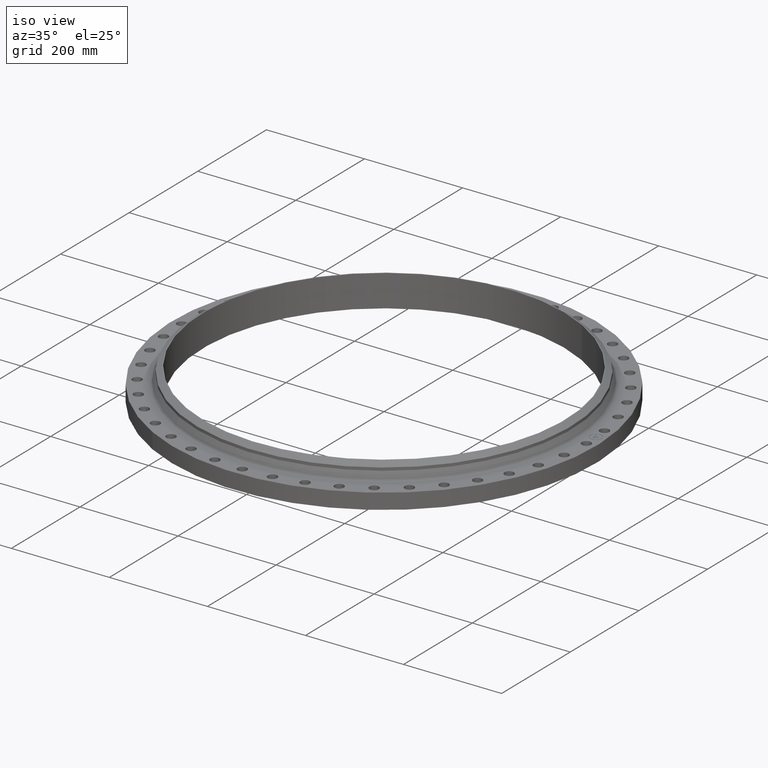
[diagram: clean part render]
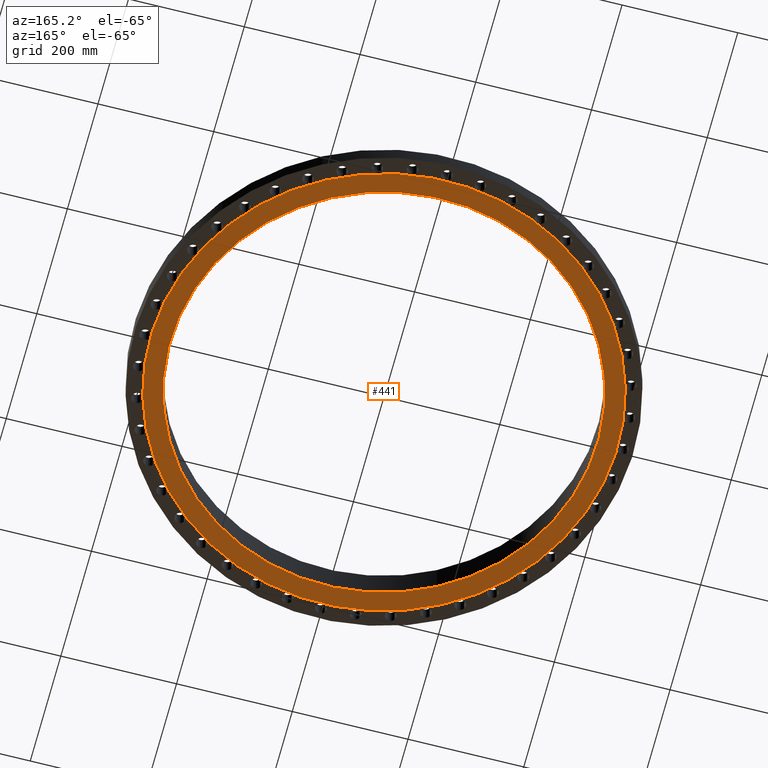
[diagram: tour spotlight — one face highlighted and labeled with its STEP entity id]
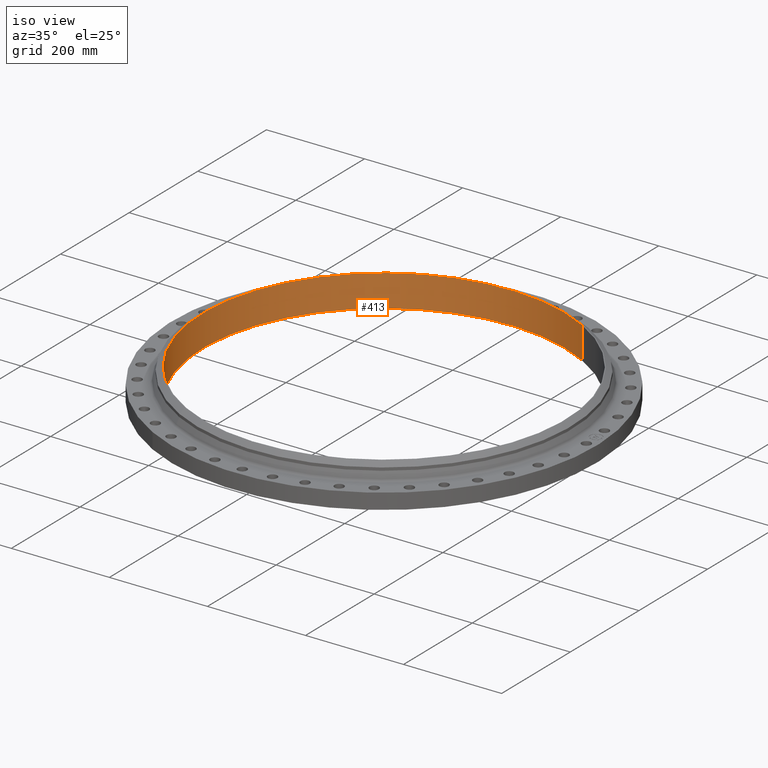
[diagram: tour spotlight — one face highlighted and labeled with its STEP entity id]
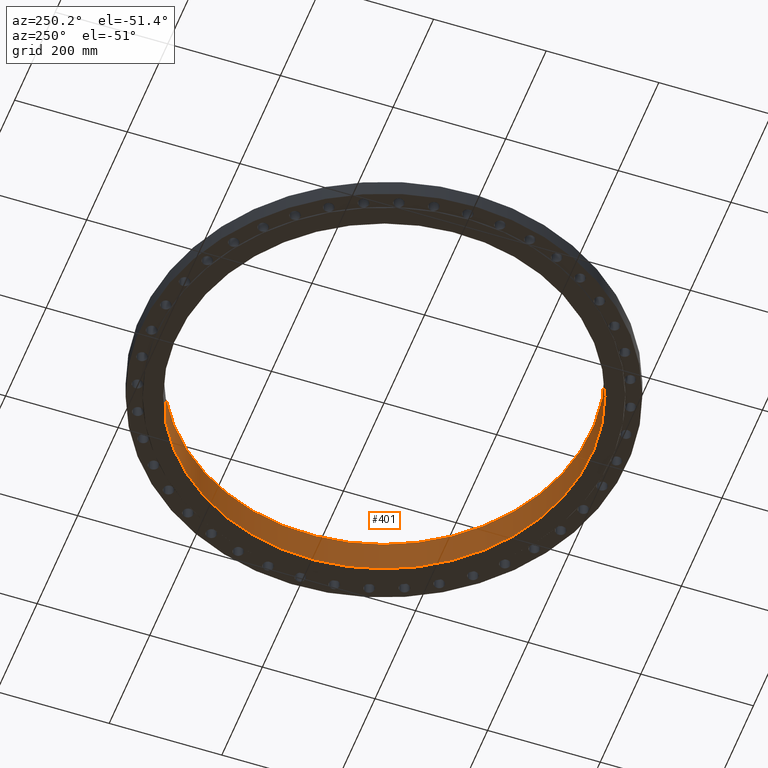
[diagram: tour spotlight — one face highlighted and labeled with its STEP entity id]
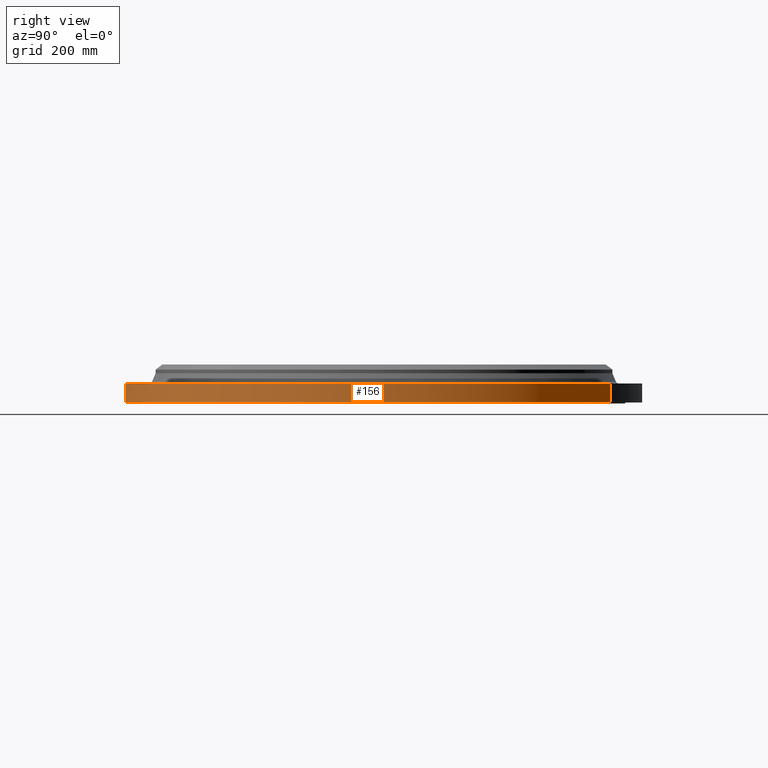
[diagram: tour spotlight — one face highlighted and labeled with its STEP entity id]
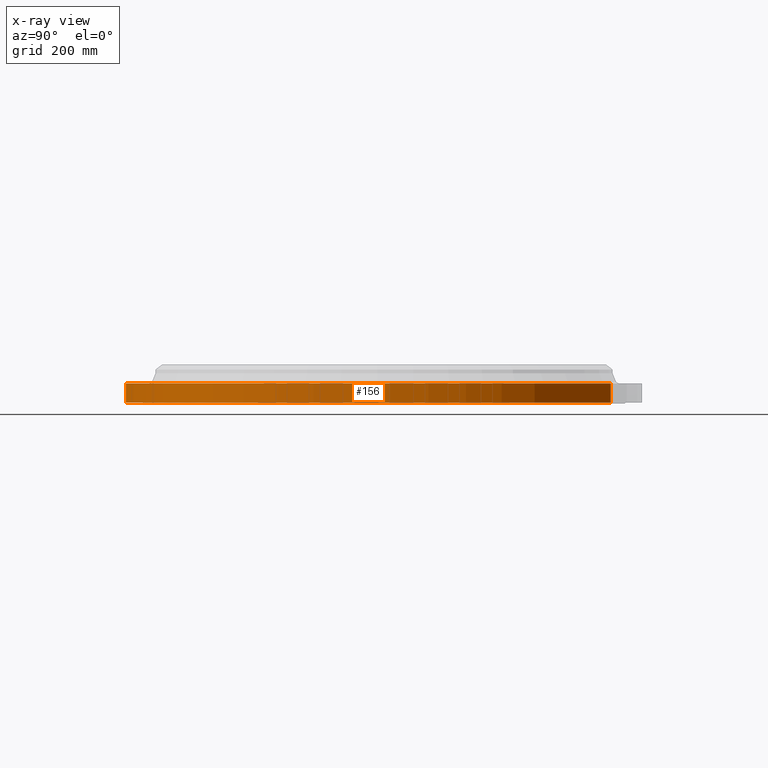
[diagram: x-ray of the same camera — body ghosted, this tour face saturated]
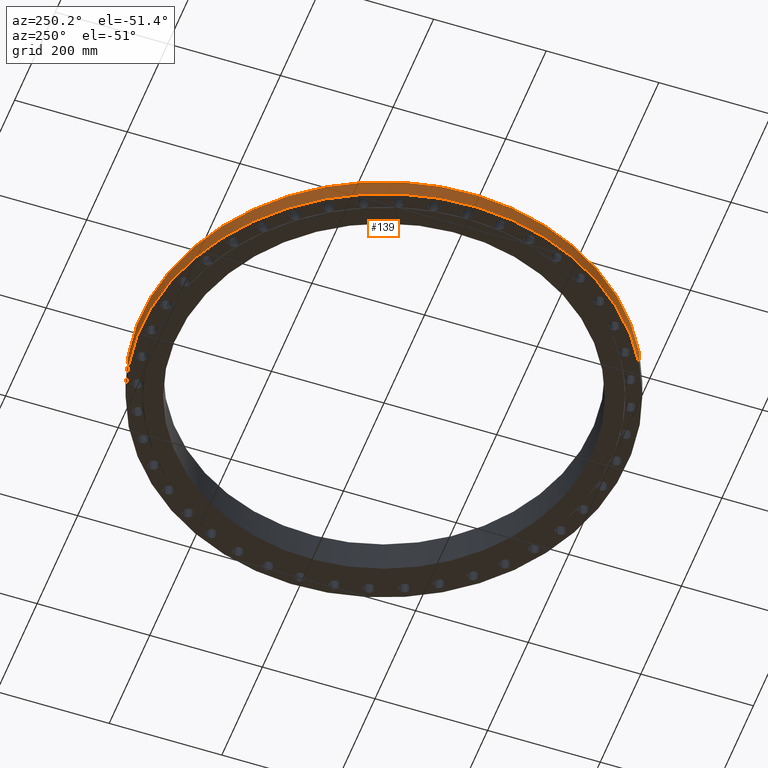
[diagram: tour spotlight — one face highlighted and labeled with its STEP entity id]
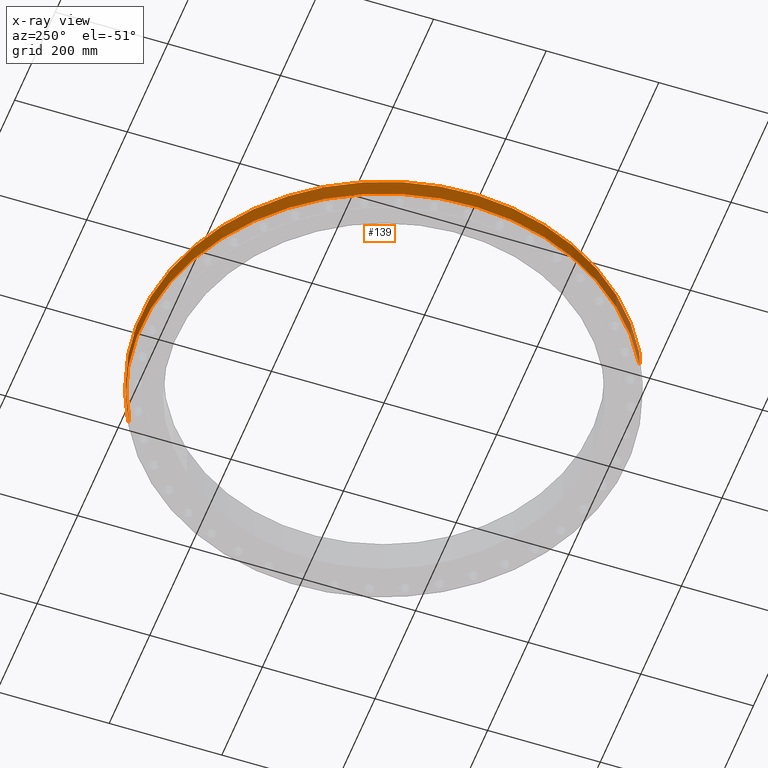
[diagram: x-ray of the same camera — body ghosted, this tour face saturated]
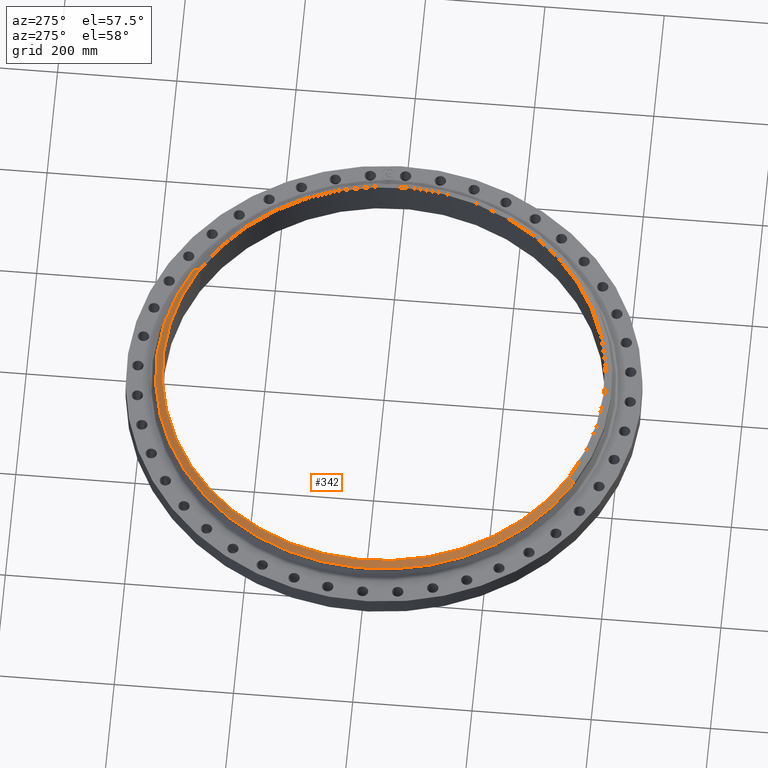
[diagram: tour spotlight — one face highlighted and labeled with its STEP entity id]
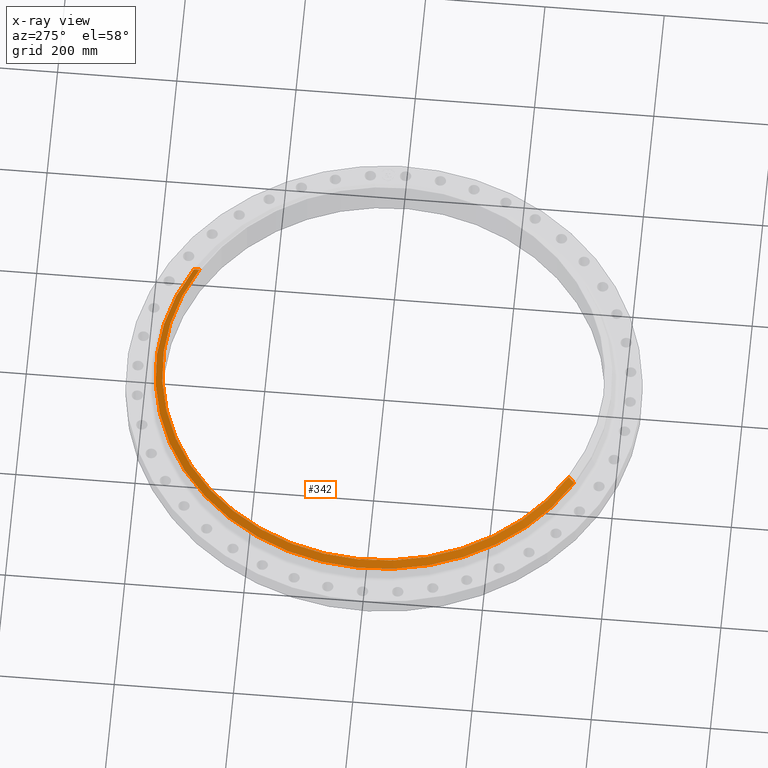
[diagram: x-ray of the same camera — body ghosted, this tour face saturated]
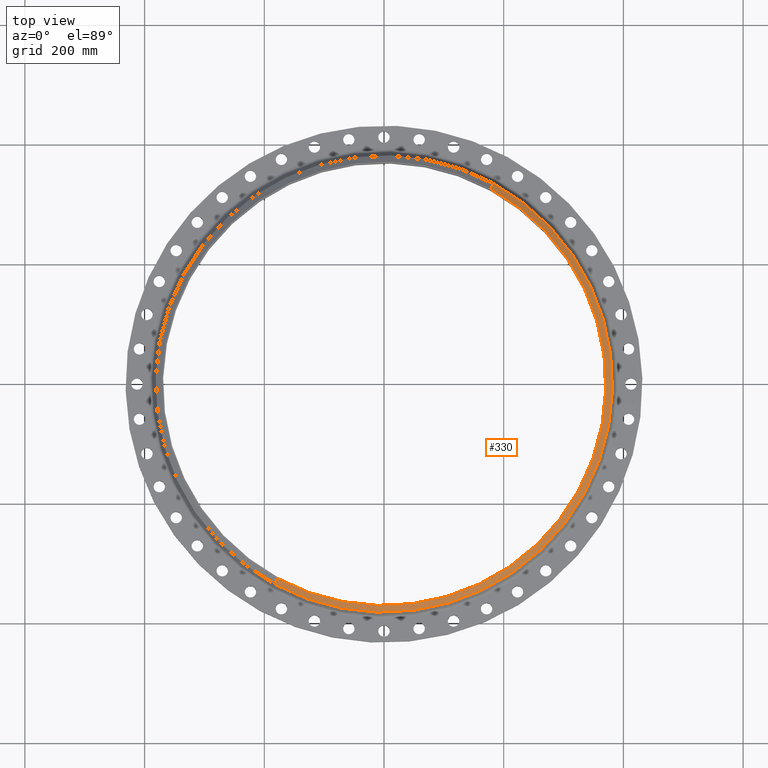
[diagram: tour spotlight — one face highlighted and labeled with its STEP entity id]
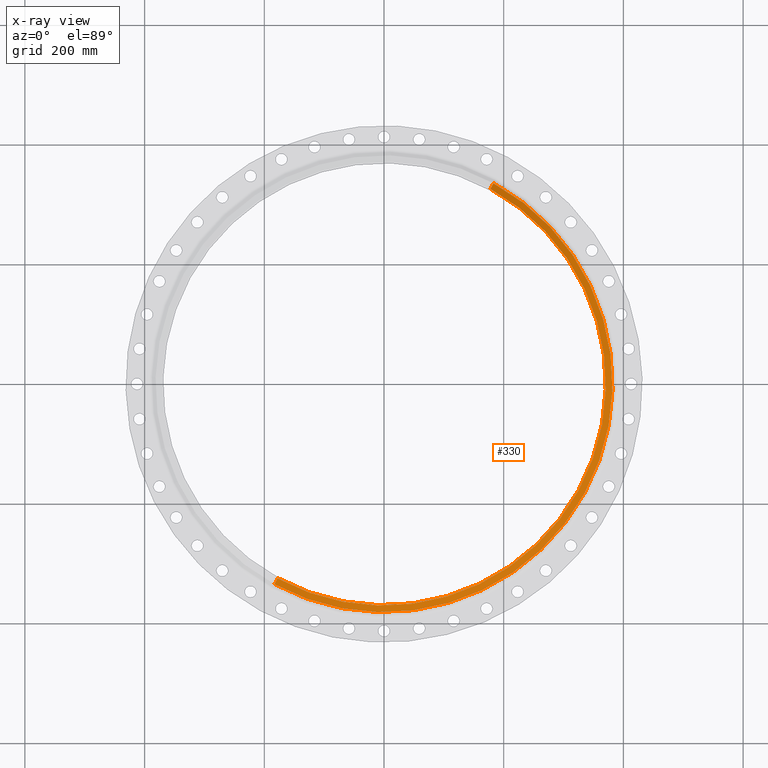
[diagram: x-ray of the same camera — body ghosted, this tour face saturated]
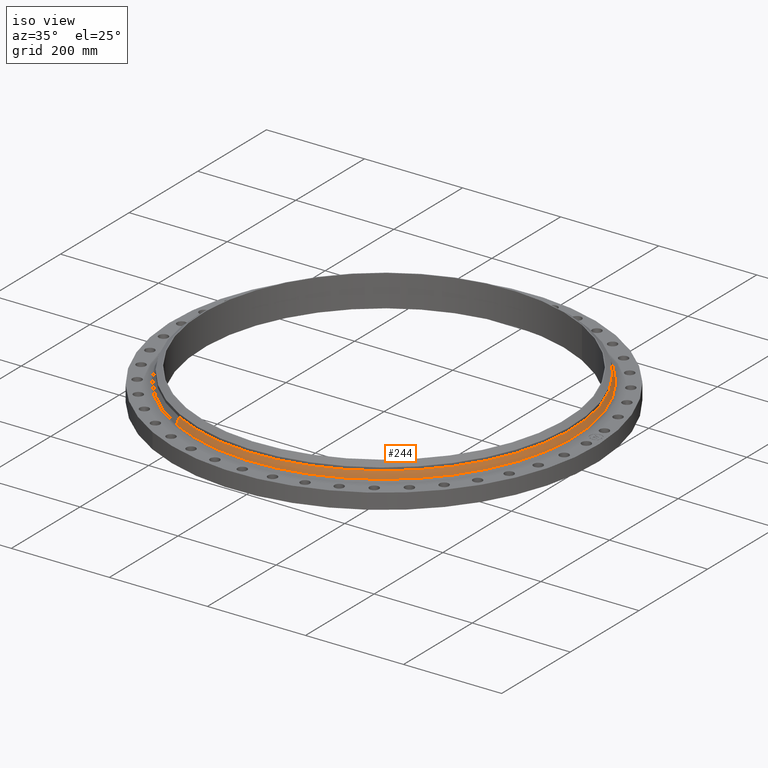
[diagram: tour spotlight — one face highlighted and labeled with its STEP entity id]
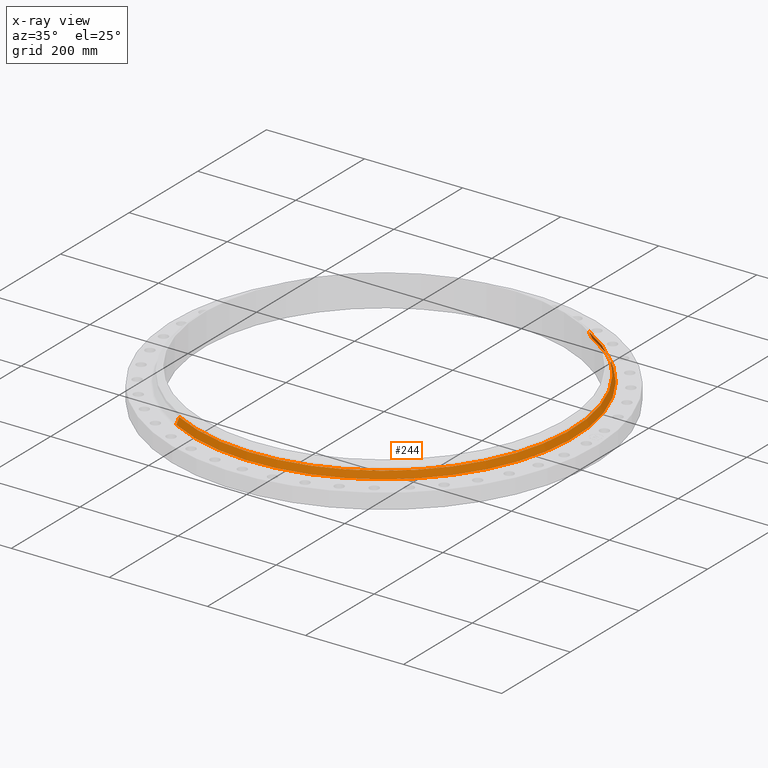
[diagram: x-ray of the same camera — body ghosted, this tour face saturated]
A machine part: a face-by-face anatomy tour. The part has 491 B-rep faces; the first image is the clean iso view, then the 8 largest visible faces are spotlighted one at a time (largest first), each with its STEP entity span.

Face 1 — auxiliary view, entity #441. In plain terms, the highlighted planar face has unit normal (0, 0, -1).
Definition (entity closure, byte-faithful):
#385=AXIS2_PLACEMENT_3D('Circle Axis2P3D',#383,#384,$) ;
#404=AXIS2_PLACEMENT_3D('Circle Axis2P3D',#402,#403,$) ;
#417=AXIS2_PLACEMENT_3D('Plane Axis2P3D',#414,#415,#416) ;
#421=AXIS2_PLACEMENT_3D('Circle Axis2P3D',#419,#420,$) ;
#430=AXIS2_PLACEMENT_3D('Circle Axis2P3D',#428,#429,$) ;
#380=CARTESIAN_POINT('Vertex',(6.96605307595,12.7512746243,-0.0630000000003)) ;
#383=CARTESIAN_POINT('Axis2P3D Location',(0.,0.,-0.0630000000003)) ;
#387=CARTESIAN_POINT('Vertex',(-6.96605307595,-12.7512746243,-0.0630000000003)) ;
#402=CARTESIAN_POINT('Axis2P3D Location',(0.,0.,-0.0630000000003)) ;
#414=CARTESIAN_POINT('Axis2P3D Location',(0.,14.5300000001,-0.0630000000003)) ;
#419=CARTESIAN_POINT('Axis2P3D Location',(0.,0.,-0.0630000000003)) ;
#423=CARTESIAN_POINT('Vertex',(-7.61088042537,-13.9316231701,-0.0630000000003)) ;
#425=CARTESIAN_POINT('Vertex',(7.61088042537,13.9316231701,-0.0630000000003)) ;
#428=CARTESIAN_POINT('Axis2P3D Location',(0.,0.,-0.0630000000003)) ;
#384=DIRECTION('Axis2P3D Direction',(0.,0.,-0.0393700787402)) ;
#403=DIRECTION('Axis2P3D Direction',(0.,0.,-0.0393700787402)) ;
#415=DIRECTION('Axis2P3D Direction',(0.,0.,-0.0393700787402)) ;
#416=DIRECTION('Axis2P3D XDirection',(0.0393700787402,0.,0.)) ;
#420=DIRECTION('Axis2P3D Direction',(0.,0.,-0.0393700787402)) ;
#429=DIRECTION('Axis2P3D Direction',(0.,0.,-0.0393700787402)) ;
#434=ORIENTED_EDGE('',*,*,#427,.T.) ;
#435=ORIENTED_EDGE('',*,*,#432,.T.) ;
#438=ORIENTED_EDGE('',*,*,#389,.F.) ;
#439=ORIENTED_EDGE('',*,*,#406,.F.) ;
#440=FACE_BOUND('',#437,.T.) ;
#441=ADVANCED_FACE('PartBody',(#436,#440),#418,.T.) ;
#386=CIRCLE('generated circle',#385,14.5300000001) ;
#405=CIRCLE('generated circle',#404,14.5300000001) ;
#422=CIRCLE('generated circle',#421,15.8750000001) ;
#431=CIRCLE('generated circle',#430,15.8750000001) ;
#389=EDGE_CURVE('',#381,#388,#386,.T.) ;
#406=EDGE_CURVE('',#388,#381,#405,.T.) ;
#427=EDGE_CURVE('',#424,#426,#422,.T.) ;
#432=EDGE_CURVE('',#426,#424,#431,.T.) ;
#433=EDGE_LOOP('',(#434,#435)) ;
#437=EDGE_LOOP('',(#438,#439)) ;
#436=FACE_OUTER_BOUND('',#433,.T.) ;
#418=PLANE('',#417) ;
#381=VERTEX_POINT('',#380) ;
#388=VERTEX_POINT('',#387) ;
#424=VERTEX_POINT('',#423) ;
#426=VERTEX_POINT('',#425) ;

Face 2 — iso view, entity #413. In plain terms, the highlighted cylindrical surface (partial cylindrical patch) has radius 369.062 mm, axis along (0, 0, -1).
Definition (entity closure, byte-faithful):
#354=AXIS2_PLACEMENT_3D('Circle Axis2P3D',#352,#353,$) ;
#374=AXIS2_PLACEMENT_3D('Cylinder Axis2P3D',#371,#372,#373) ;
#404=AXIS2_PLACEMENT_3D('Circle Axis2P3D',#402,#403,$) ;
#352=CARTESIAN_POINT('Axis2P3D Location',(4.47585975282E-015,5.59482469102E-016,2.50000000001)) ;
#356=CARTESIAN_POINT('Vertex',(-6.96605307595,-12.7512746243,2.50000000001)) ;
#358=CARTESIAN_POINT('Vertex',(6.96605307595,12.7512746243,2.50000000001)) ;
#371=CARTESIAN_POINT('Axis2P3D Location',(0.,0.,1.26850000001)) ;
#376=CARTESIAN_POINT('Line Origine',(6.96605307595,12.7512746243,1.2185)) ;
#380=CARTESIAN_POINT('Vertex',(6.96605307595,12.7512746243,-0.0630000000003)) ;
#387=CARTESIAN_POINT('Vertex',(-6.96605307595,-12.7512746243,-0.0630000000003)) ;
#390=CARTESIAN_POINT('Line Origine',(-6.96605307595,-12.7512746243,1.2185)) ;
#402=CARTESIAN_POINT('Axis2P3D Location',(0.,0.,-0.0630000000003)) ;
#353=DIRECTION('Axis2P3D Direction',(0.,-0.,-0.0393700787402)) ;
#372=DIRECTION('Axis2P3D Direction',(0.,0.,-0.0393700787402)) ;
#373=DIRECTION('Axis2P3D XDirection',(-0.0188750212049,-0.0345504945626,0.)) ;
#377=DIRECTION('Vector Direction',(0.,0.,-0.0393700787402)) ;
#391=DIRECTION('Vector Direction',(0.,0.,-0.0393700787402)) ;
#403=DIRECTION('Axis2P3D Direction',(0.,0.,-0.0393700787402)) ;
#378=VECTOR('Line Direction',#377,0.0393700787402) ;
#392=VECTOR('Line Direction',#391,0.0393700787402) ;
#408=ORIENTED_EDGE('',*,*,#394,.T.) ;
#409=ORIENTED_EDGE('',*,*,#406,.T.) ;
#410=ORIENTED_EDGE('',*,*,#382,.F.) ;
#411=ORIENTED_EDGE('',*,*,#360,.F.) ;
#413=ADVANCED_FACE('PartBody',(#412),#375,.F.) ;
#355=CIRCLE('generated circle',#354,14.5300000001) ;
#405=CIRCLE('generated circle',#404,14.5300000001) ;
#375=CYLINDRICAL_SURFACE('generated cylinder',#374,14.5300000001) ;
#360=EDGE_CURVE('',#357,#359,#355,.T.) ;
#382=EDGE_CURVE('',#359,#381,#379,.T.) ;
#394=EDGE_CURVE('',#357,#388,#393,.T.) ;
#406=EDGE_CURVE('',#388,#381,#405,.T.) ;
#407=EDGE_LOOP('',(#408,#409,#410,#411)) ;
#412=FACE_OUTER_BOUND('',#407,.T.) ;
#379=LINE('Line',#376,#378) ;
#393=LINE('Line',#390,#392) ;
#357=VERTEX_POINT('',#356) ;
#359=VERTEX_POINT('',#358) ;
#381=VERTEX_POINT('',#380) ;
#388=VERTEX_POINT('',#387) ;

Face 3 — auxiliary view, entity #401. In plain terms, the highlighted cylindrical surface (partial cylindrical patch) has radius 369.062 mm, axis along (0, 0, -1).
Definition (entity closure, byte-faithful):
#363=AXIS2_PLACEMENT_3D('Circle Axis2P3D',#361,#362,$) ;
#374=AXIS2_PLACEMENT_3D('Cylinder Axis2P3D',#371,#372,#373) ;
#385=AXIS2_PLACEMENT_3D('Circle Axis2P3D',#383,#384,$) ;
#356=CARTESIAN_POINT('Vertex',(-6.96605307595,-12.7512746243,2.50000000001)) ;
#358=CARTESIAN_POINT('Vertex',(6.96605307595,12.7512746243,2.50000000001)) ;
#361=CARTESIAN_POINT('Axis2P3D Location',(-3.35689481461E-015,-2.23792987641E-015,2.50000000001)) ;
#371=CARTESIAN_POINT('Axis2P3D Location',(0.,0.,1.26850000001)) ;
#376=CARTESIAN_POINT('Line Origine',(6.96605307595,12.7512746243,1.2185)) ;
#380=CARTESIAN_POINT('Vertex',(6.96605307595,12.7512746243,-0.0630000000003)) ;
#383=CARTESIAN_POINT('Axis2P3D Location',(0.,0.,-0.0630000000003)) ;
#387=CARTESIAN_POINT('Vertex',(-6.96605307595,-12.7512746243,-0.0630000000003)) ;
#390=CARTESIAN_POINT('Line Origine',(-6.96605307595,-12.7512746243,1.2185)) ;
#362=DIRECTION('Axis2P3D Direction',(0.,-0.,-0.0393700787402)) ;
#372=DIRECTION('Axis2P3D Direction',(0.,0.,-0.0393700787402)) ;
#373=DIRECTION('Axis2P3D XDirection',(-0.0188750212049,-0.0345504945626,0.)) ;
#377=DIRECTION('Vector Direction',(0.,0.,-0.0393700787402)) ;
#384=DIRECTION('Axis2P3D Direction',(0.,0.,-0.0393700787402)) ;
#391=DIRECTION('Vector Direction',(0.,0.,-0.0393700787402)) ;
#378=VECTOR('Line Direction',#377,0.0393700787402) ;
#392=VECTOR('Line Direction',#391,0.0393700787402) ;
#396=ORIENTED_EDGE('',*,*,#382,.T.) ;
#397=ORIENTED_EDGE('',*,*,#389,.T.) ;
#398=ORIENTED_EDGE('',*,*,#394,.F.) ;
#399=ORIENTED_EDGE('',*,*,#365,.F.) ;
#401=ADVANCED_FACE('PartBody',(#400),#375,.F.) ;
#364=CIRCLE('generated circle',#363,14.5300000001) ;
#386=CIRCLE('generated circle',#385,14.5300000001) ;
#375=CYLINDRICAL_SURFACE('generated cylinder',#374,14.5300000001) ;
#365=EDGE_CURVE('',#359,#357,#364,.T.) ;
#382=EDGE_CURVE('',#359,#381,#379,.T.) ;
#389=EDGE_CURVE('',#381,#388,#386,.T.) ;
#394=EDGE_CURVE('',#357,#388,#393,.T.) ;
#395=EDGE_LOOP('',(#396,#397,#398,#399)) ;
#400=FACE_OUTER_BOUND('',#395,.T.) ;
#379=LINE('Line',#376,#378) ;
#393=LINE('Line',#390,#392) ;
#357=VERTEX_POINT('',#356) ;
#359=VERTEX_POINT('',#358) ;
#381=VERTEX_POINT('',#380) ;
#388=VERTEX_POINT('',#387) ;

Face 4 — right view, entity #156. An x-ray twin of the same camera follows (body ghosted, this face saturated) — the face is partly hidden behind the body. In plain terms, the highlighted cylindrical surface (partial cylindrical patch) has radius 431.8 mm, axis along (0, 0, -1).
Definition (entity closure, byte-faithful):
#103=AXIS2_PLACEMENT_3D('Cylinder Axis2P3D',#100,#101,#102) ;
#142=AXIS2_PLACEMENT_3D('Circle Axis2P3D',#140,#141,$) ;
#147=AXIS2_PLACEMENT_3D('Circle Axis2P3D',#145,#146,$) ;
#100=CARTESIAN_POINT('Axis2P3D Location',(0.,0.,1.26850000001)) ;
#109=CARTESIAN_POINT('Vertex',(-8.1502341563,-14.9189035522,1.95818864186E-015)) ;
#111=CARTESIAN_POINT('Vertex',(8.1502341563,14.9189035522,1.95818864186E-015)) ;
#114=CARTESIAN_POINT('Line Origine',(-8.1502341563,-14.9189035522,0.625000000003)) ;
#118=CARTESIAN_POINT('Vertex',(-8.1502341563,-14.9189035522,1.25000000001)) ;
#125=CARTESIAN_POINT('Vertex',(8.1502341563,14.9189035522,1.25000000001)) ;
#128=CARTESIAN_POINT('Line Origine',(8.1502341563,14.9189035522,0.625000000003)) ;
#140=CARTESIAN_POINT('Axis2P3D Location',(0.,0.,1.95818864186E-015)) ;
#145=CARTESIAN_POINT('Axis2P3D Location',(0.,0.,1.25000000001)) ;
#101=DIRECTION('Axis2P3D Direction',(0.,0.,-0.0393700787402)) ;
#102=DIRECTION('Axis2P3D XDirection',(0.0188750212049,0.0345504945626,0.)) ;
#115=DIRECTION('Vector Direction',(0.,0.,-0.0393700787402)) ;
#129=DIRECTION('Vector Direction',(0.,0.,-0.0393700787402)) ;
#141=DIRECTION('Axis2P3D Direction',(0.,0.,-0.0393700787402)) ;
#146=DIRECTION('Axis2P3D Direction',(0.,0.,-0.0393700787402)) ;
#116=VECTOR('Line Direction',#115,0.0393700787402) ;
#130=VECTOR('Line Direction',#129,0.0393700787402) ;
#151=ORIENTED_EDGE('',*,*,#144,.F.) ;
#152=ORIENTED_EDGE('',*,*,#132,.T.) ;
#153=ORIENTED_EDGE('',*,*,#149,.T.) ;
#154=ORIENTED_EDGE('',*,*,#120,.F.) ;
#156=ADVANCED_FACE('PartBody',(#155),#104,.T.) ;
#143=CIRCLE('generated circle',#142,17.0000000001) ;
#148=CIRCLE('generated circle',#147,17.0000000001) ;
#104=CYLINDRICAL_SURFACE('generated cylinder',#103,17.0000000001) ;
#120=EDGE_CURVE('',#110,#119,#117,.F.) ;
#132=EDGE_CURVE('',#112,#126,#131,.F.) ;
#144=EDGE_CURVE('',#112,#110,#143,.T.) ;
#149=EDGE_CURVE('',#126,#119,#148,.T.) ;
#150=EDGE_LOOP('',(#151,#152,#153,#154)) ;
#155=FACE_OUTER_BOUND('',#150,.T.) ;
#117=LINE('Line',#114,#116) ;
#131=LINE('Line',#128,#130) ;
#110=VERTEX_POINT('',#109) ;
#112=VERTEX_POINT('',#111) ;
#119=VERTEX_POINT('',#118) ;
#126=VERTEX_POINT('',#125) ;

Face 5 — auxiliary view, entity #139. An x-ray twin of the same camera follows (body ghosted, this face saturated) — the face is partly hidden behind the body. In plain terms, the highlighted cylindrical surface (partial cylindrical patch) has radius 431.8 mm, axis along (0, 0, -1).
Definition (entity closure, byte-faithful):
#103=AXIS2_PLACEMENT_3D('Cylinder Axis2P3D',#100,#101,#102) ;
#107=AXIS2_PLACEMENT_3D('Circle Axis2P3D',#105,#106,$) ;
#123=AXIS2_PLACEMENT_3D('Circle Axis2P3D',#121,#122,$) ;
#100=CARTESIAN_POINT('Axis2P3D Location',(0.,0.,1.26850000001)) ;
#105=CARTESIAN_POINT('Axis2P3D Location',(0.,0.,1.95818864186E-015)) ;
#109=CARTESIAN_POINT('Vertex',(-8.1502341563,-14.9189035522,1.95818864186E-015)) ;
#111=CARTESIAN_POINT('Vertex',(8.1502341563,14.9189035522,1.95818864186E-015)) ;
#114=CARTESIAN_POINT('Line Origine',(-8.1502341563,-14.9189035522,0.625000000003)) ;
#118=CARTESIAN_POINT('Vertex',(-8.1502341563,-14.9189035522,1.25000000001)) ;
#121=CARTESIAN_POINT('Axis2P3D Location',(0.,0.,1.25000000001)) ;
#125=CARTESIAN_POINT('Vertex',(8.1502341563,14.9189035522,1.25000000001)) ;
#128=CARTESIAN_POINT('Line Origine',(8.1502341563,14.9189035522,0.625000000003)) ;
#101=DIRECTION('Axis2P3D Direction',(0.,0.,-0.0393700787402)) ;
#102=DIRECTION('Axis2P3D XDirection',(0.0188750212049,0.0345504945626,0.)) ;
#106=DIRECTION('Axis2P3D Direction',(0.,0.,-0.0393700787402)) ;
#115=DIRECTION('Vector Direction',(0.,0.,-0.0393700787402)) ;
#122=DIRECTION('Axis2P3D Direction',(0.,0.,-0.0393700787402)) ;
#129=DIRECTION('Vector Direction',(0.,0.,-0.0393700787402)) ;
#116=VECTOR('Line Direction',#115,0.0393700787402) ;
#130=VECTOR('Line Direction',#129,0.0393700787402) ;
#134=ORIENTED_EDGE('',*,*,#113,.F.) ;
#135=ORIENTED_EDGE('',*,*,#120,.T.) ;
#136=ORIENTED_EDGE('',*,*,#127,.T.) ;
#137=ORIENTED_EDGE('',*,*,#132,.F.) ;
#139=ADVANCED_FACE('PartBody',(#138),#104,.T.) ;
#108=CIRCLE('generated circle',#107,17.0000000001) ;
#124=CIRCLE('generated circle',#123,17.0000000001) ;
#104=CYLINDRICAL_SURFACE('generated cylinder',#103,17.0000000001) ;
#113=EDGE_CURVE('',#110,#112,#108,.T.) ;
#120=EDGE_CURVE('',#110,#119,#117,.F.) ;
#127=EDGE_CURVE('',#119,#126,#124,.T.) ;
#132=EDGE_CURVE('',#112,#126,#131,.F.) ;
#133=EDGE_LOOP('',(#134,#135,#136,#137)) ;
#138=FACE_OUTER_BOUND('',#133,.T.) ;
#117=LINE('Line',#114,#116) ;
#131=LINE('Line',#128,#130) ;
#110=VERTEX_POINT('',#109) ;
#112=VERTEX_POINT('',#111) ;
#119=VERTEX_POINT('',#118) ;
#126=VERTEX_POINT('',#125) ;

Face 6 — auxiliary view, entity #342. An x-ray twin of the same camera follows (body ghosted, this face saturated) — the face is partly hidden behind the body. In plain terms, the highlighted conical surface has half-angle 52.5 deg.
Definition (entity closure, byte-faithful):
#290=AXIS2_PLACEMENT_3D('Circle Axis2P3D',#288,#289,$) ;
#303=AXIS2_PLACEMENT_3D('Cone Axis2P3D',#300,#301,#302) ;
#333=AXIS2_PLACEMENT_3D('Circle Axis2P3D',#331,#332,$) ;
#266=CARTESIAN_POINT('Vertex',(-7.20576584525,-13.1900659053,2.16429444277)) ;
#273=CARTESIAN_POINT('Vertex',(7.20576584525,13.1900659053,2.16429444277)) ;
#288=CARTESIAN_POINT('Axis2P3D Location',(0.,0.,2.16429444277)) ;
#300=CARTESIAN_POINT('Axis2P3D Location',(0.,0.,2.50000000001)) ;
#305=CARTESIAN_POINT('Line Origine',(7.10089150868,12.9980947199,2.33214722139)) ;
#309=CARTESIAN_POINT('Vertex',(6.99601717211,12.8061235344,2.50000000001)) ;
#316=CARTESIAN_POINT('Vertex',(-6.99601717211,-12.8061235344,2.50000000001)) ;
#319=CARTESIAN_POINT('Line Origine',(-7.10089150868,-12.9980947199,2.33214722139)) ;
#331=CARTESIAN_POINT('Axis2P3D Location',(0.,0.,2.50000000001)) ;
#289=DIRECTION('Axis2P3D Direction',(0.,0.,-0.0393700787402)) ;
#301=DIRECTION('Axis2P3D Direction',(-0.,-0.,-0.0393700787402)) ;
#302=DIRECTION('Axis2P3D XDirection',(-0.0188750212049,-0.0345504945626,0.)) ;
#306=DIRECTION('Vector Direction',(0.014974561121,0.02741075027,-0.023966985394)) ;
#320=DIRECTION('Vector Direction',(-0.014974561121,-0.02741075027,-0.023966985394)) ;
#332=DIRECTION('Axis2P3D Direction',(0.,-0.,-0.0393700787402)) ;
#307=VECTOR('Line Direction',#306,0.0393700787402) ;
#321=VECTOR('Line Direction',#320,0.0393700787402) ;
#337=ORIENTED_EDGE('',*,*,#323,.F.) ;
#338=ORIENTED_EDGE('',*,*,#335,.T.) ;
#339=ORIENTED_EDGE('',*,*,#311,.T.) ;
#340=ORIENTED_EDGE('',*,*,#292,.F.) ;
#342=ADVANCED_FACE('PartBody',(#341),#304,.T.) ;
#291=CIRCLE('generated circle',#290,15.0300000001) ;
#334=CIRCLE('generated circle',#333,14.5925000001) ;
#304=CONICAL_SURFACE('Cone',#303,14.5925000001,0.916297857297) ;
#292=EDGE_CURVE('',#267,#274,#291,.T.) ;
#311=EDGE_CURVE('',#310,#274,#308,.T.) ;
#323=EDGE_CURVE('',#317,#267,#322,.T.) ;
#335=EDGE_CURVE('',#317,#310,#334,.T.) ;
#336=EDGE_LOOP('',(#337,#338,#339,#340)) ;
#341=FACE_OUTER_BOUND('',#336,.T.) ;
#308=LINE('Line',#305,#307) ;
#322=LINE('Line',#319,#321) ;
#267=VERTEX_POINT('',#266) ;
#274=VERTEX_POINT('',#273) ;
#310=VERTEX_POINT('',#309) ;
#317=VERTEX_POINT('',#316) ;

Face 7 — top view, entity #330. An x-ray twin of the same camera follows (body ghosted, this face saturated) — the face is partly hidden behind the body. In plain terms, the highlighted conical surface has half-angle 52.5 deg.
Definition (entity closure, byte-faithful):
#278=AXIS2_PLACEMENT_3D('Circle Axis2P3D',#276,#277,$) ;
#303=AXIS2_PLACEMENT_3D('Cone Axis2P3D',#300,#301,#302) ;
#314=AXIS2_PLACEMENT_3D('Circle Axis2P3D',#312,#313,$) ;
#266=CARTESIAN_POINT('Vertex',(-7.20576584525,-13.1900659053,2.16429444277)) ;
#273=CARTESIAN_POINT('Vertex',(7.20576584525,13.1900659053,2.16429444277)) ;
#276=CARTESIAN_POINT('Axis2P3D Location',(0.,0.,2.16429444277)) ;
#300=CARTESIAN_POINT('Axis2P3D Location',(0.,0.,2.50000000001)) ;
#305=CARTESIAN_POINT('Line Origine',(7.10089150868,12.9980947199,2.33214722139)) ;
#309=CARTESIAN_POINT('Vertex',(6.99601717211,12.8061235344,2.50000000001)) ;
#312=CARTESIAN_POINT('Axis2P3D Location',(0.,0.,2.50000000001)) ;
#316=CARTESIAN_POINT('Vertex',(-6.99601717211,-12.8061235344,2.50000000001)) ;
#319=CARTESIAN_POINT('Line Origine',(-7.10089150868,-12.9980947199,2.33214722139)) ;
#277=DIRECTION('Axis2P3D Direction',(0.,0.,-0.0393700787402)) ;
#301=DIRECTION('Axis2P3D Direction',(-0.,-0.,-0.0393700787402)) ;
#302=DIRECTION('Axis2P3D XDirection',(-0.0188750212049,-0.0345504945626,0.)) ;
#306=DIRECTION('Vector Direction',(0.014974561121,0.02741075027,-0.023966985394)) ;
#313=DIRECTION('Axis2P3D Direction',(0.,-0.,-0.0393700787402)) ;
#320=DIRECTION('Vector Direction',(-0.014974561121,-0.02741075027,-0.023966985394)) ;
#307=VECTOR('Line Direction',#306,0.0393700787402) ;
#321=VECTOR('Line Direction',#320,0.0393700787402) ;
#325=ORIENTED_EDGE('',*,*,#311,.F.) ;
#326=ORIENTED_EDGE('',*,*,#318,.T.) ;
#327=ORIENTED_EDGE('',*,*,#323,.T.) ;
#328=ORIENTED_EDGE('',*,*,#280,.F.) ;
#330=ADVANCED_FACE('PartBody',(#329),#304,.T.) ;
#279=CIRCLE('generated circle',#278,15.0300000001) ;
#315=CIRCLE('generated circle',#314,14.5925000001) ;
#304=CONICAL_SURFACE('Cone',#303,14.5925000001,0.916297857297) ;
#280=EDGE_CURVE('',#274,#267,#279,.T.) ;
#311=EDGE_CURVE('',#310,#274,#308,.T.) ;
#318=EDGE_CURVE('',#310,#317,#315,.T.) ;
#323=EDGE_CURVE('',#317,#267,#322,.T.) ;
#324=EDGE_LOOP('',(#325,#326,#327,#328)) ;
#329=FACE_OUTER_BOUND('',#324,.T.) ;
#308=LINE('Line',#305,#307) ;
#322=LINE('Line',#319,#321) ;
#267=VERTEX_POINT('',#266) ;
#274=VERTEX_POINT('',#273) ;
#310=VERTEX_POINT('',#309) ;
#317=VERTEX_POINT('',#316) ;

Face 8 — iso view, entity #244. An x-ray twin of the same camera follows (body ghosted, this face saturated) — the face is partly hidden behind the body. In plain terms, the highlighted conical surface has half-angle 22.437 deg.
Definition (entity closure, byte-faithful):
#180=AXIS2_PLACEMENT_3D('Circle Axis2P3D',#178,#179,$) ;
#217=AXIS2_PLACEMENT_3D('Cone Axis2P3D',#214,#215,#216) ;
#228=AXIS2_PLACEMENT_3D('Circle Axis2P3D',#226,#227,$) ;
#175=CARTESIAN_POINT('Vertex',(7.30940230078,13.3797711646,1.40458151339)) ;
#178=CARTESIAN_POINT('Axis2P3D Location',(0.,0.,1.40458151339)) ;
#182=CARTESIAN_POINT('Vertex',(-7.30940230078,-13.3797711646,1.40458151339)) ;
#214=CARTESIAN_POINT('Axis2P3D Location',(0.,0.,1.92807397033)) ;
#219=CARTESIAN_POINT('Line Origine',(7.25758407302,13.284918535,1.66632774186)) ;
#223=CARTESIAN_POINT('Vertex',(7.20576584525,13.1900659053,1.92807397033)) ;
#226=CARTESIAN_POINT('Axis2P3D Location',(0.,0.,1.92807397033)) ;
#230=CARTESIAN_POINT('Vertex',(-7.20576584525,-13.1900659053,1.92807397033)) ;
#233=CARTESIAN_POINT('Line Origine',(-7.25758407302,-13.284918535,1.66632774186)) ;
#179=DIRECTION('Axis2P3D Direction',(0.,0.,-0.0393700787402)) ;
#215=DIRECTION('Axis2P3D Direction',(0.,0.,-0.0393700787402)) ;
#216=DIRECTION('Axis2P3D XDirection',(-0.0188750212049,-0.0345504945626,0.)) ;
#220=DIRECTION('Vector Direction',(0.00720410383264,0.0131870236116,-0.0363896468277)) ;
#227=DIRECTION('Axis2P3D Direction',(0.,0.,-0.0393700787402)) ;
#234=DIRECTION('Vector Direction',(-0.00720410383264,-0.0131870236116,-0.0363896468277)) ;
#221=VECTOR('Line Direction',#220,0.0393700787402) ;
#235=VECTOR('Line Direction',#234,0.0393700787402) ;
#239=ORIENTED_EDGE('',*,*,#184,.F.) ;
#240=ORIENTED_EDGE('',*,*,#225,.T.) ;
#241=ORIENTED_EDGE('',*,*,#232,.T.) ;
#242=ORIENTED_EDGE('',*,*,#237,.F.) ;
#244=ADVANCED_FACE('PartBody',(#243),#218,.T.) ;
#181=CIRCLE('generated circle',#180,15.2461679911) ;
#229=CIRCLE('generated circle',#228,15.0300000001) ;
#218=CONICAL_SURFACE('Cone',#217,15.0300000001,0.391606668957) ;
#184=EDGE_CURVE('',#176,#183,#181,.T.) ;
#225=EDGE_CURVE('',#176,#224,#222,.F.) ;
#232=EDGE_CURVE('',#224,#231,#229,.T.) ;
#237=EDGE_CURVE('',#183,#231,#236,.F.) ;
#238=EDGE_LOOP('',(#239,#240,#241,#242)) ;
#243=FACE_OUTER_BOUND('',#238,.T.) ;
#222=LINE('Line',#219,#221) ;
#236=LINE('Line',#233,#235) ;
#176=VERTEX_POINT('',#175) ;
#183=VERTEX_POINT('',#182) ;
#224=VERTEX_POINT('',#223) ;
#231=VERTEX_POINT('',#230) ;